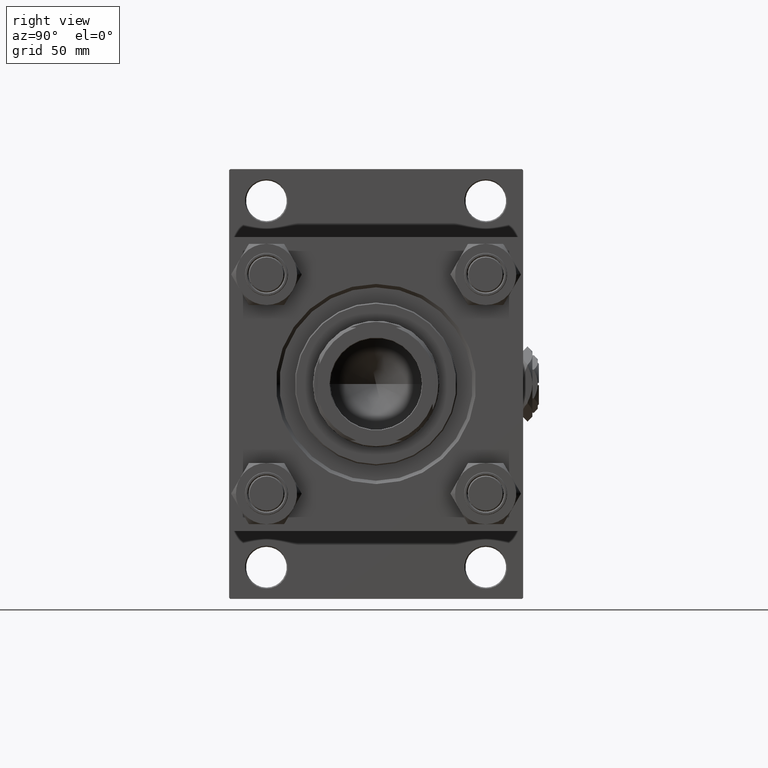
[diagram: clean part render]
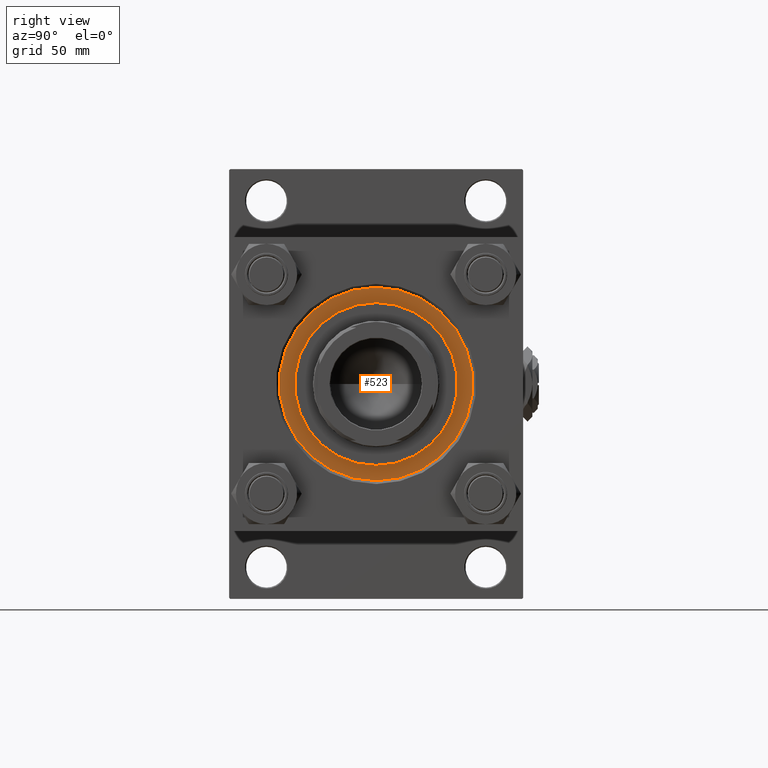
[diagram: same view with one face highlighted and labeled with its STEP entity id]
A machine part, right view. The second image highlights one B-rep face of the part: STEP entity #523.
In plain terms, the highlighted planar face has unit normal (1, 0, 0).
Its self-contained STEP definition (entity closure, byte-faithful):
#523 = ADVANCED_FACE ( 'NONE', ( #37120, #45878 ), #4943, .T. ) ;
#1317 = EDGE_LOOP ( 'NONE', ( #31355, #17736 ) ) ;
#2992 = AXIS2_PLACEMENT_3D ( 'NONE', #7835, #31473, #40515 ) ;
#3150 = ORIENTED_EDGE ( 'NONE', *, *, #32224, .T. ) ;
#4943 = PLANE ( 'NONE',  #23277 ) ;
#7703 = EDGE_CURVE ( 'NONE', #19094, #27431, #25922, .T. ) ;
#7835 = CARTESIAN_POINT ( 'NONE',  ( 0.000000000000000000, 0.000000000000000000, 28.69999999999999929 ) ) ;
#10267 = ORIENTED_EDGE ( 'NONE', *, *, #7703, .T. ) ;
#10931 = CARTESIAN_POINT ( 'NONE',  ( 0.000000000000000000, 0.000000000000000000, 28.69999999999999929 ) ) ;
#14979 = VERTEX_POINT ( 'NONE', #48690 ) ;
#16830 = EDGE_CURVE ( 'NONE', #14979, #49253, #20314, .T. ) ;
#17736 = ORIENTED_EDGE ( 'NONE', *, *, #22820, .F. ) ;
#19094 = VERTEX_POINT ( 'NONE', #42202 ) ;
#20314 = CIRCLE ( 'NONE', #48355, 36.00000000000000000 ) ;
#20816 = CARTESIAN_POINT ( 'NONE',  ( 36.00000000000000000, 4.408728476930470856E-15, 28.69999999999999929 ) ) ;
#22820 = EDGE_CURVE ( 'NONE', #49253, #14979, #42656, .T. ) ;
#23277 = AXIS2_PLACEMENT_3D ( 'NONE', #33909, #25935, #25150 ) ;
#25150 = DIRECTION ( 'NONE',  ( 1.000000000000000000, 0.000000000000000000, -0.000000000000000000 ) ) ;
#25155 = DIRECTION ( 'NONE',  ( 1.000000000000000000, 0.000000000000000000, 0.000000000000000000 ) ) ;
#25922 = CIRCLE ( 'NONE', #2992, 42.75000000000000000 ) ;
#25935 = DIRECTION ( 'NONE',  ( 0.000000000000000000, 0.000000000000000000, 1.000000000000000000 ) ) ;
#27431 = VERTEX_POINT ( 'NONE', #28934 ) ;
#28934 = CARTESIAN_POINT ( 'NONE',  ( 42.75000000000000000, 5.235365066354935472E-15, 28.69999999999999929 ) ) ;
#30536 = DIRECTION ( 'NONE',  ( 0.000000000000000000, 0.000000000000000000, 1.000000000000000000 ) ) ;
#31355 = ORIENTED_EDGE ( 'NONE', *, *, #16830, .F. ) ;
#31473 = DIRECTION ( 'NONE',  ( 0.000000000000000000, 0.000000000000000000, 1.000000000000000000 ) ) ;
#32224 = EDGE_CURVE ( 'NONE', #27431, #19094, #40466, .T. ) ;
#33746 = DIRECTION ( 'NONE',  ( 1.000000000000000000, 0.000000000000000000, 0.000000000000000000 ) ) ;
#33909 = CARTESIAN_POINT ( 'NONE',  ( 0.000000000000000000, 0.000000000000000000, 28.69999999999999929 ) ) ;
#34322 = DIRECTION ( 'NONE',  ( 0.000000000000000000, 0.000000000000000000, 1.000000000000000000 ) ) ;
#37120 = FACE_BOUND ( 'NONE', #1317, .T. ) ;
#37908 = DIRECTION ( 'NONE',  ( 0.000000000000000000, 0.000000000000000000, 1.000000000000000000 ) ) ;
#39632 = AXIS2_PLACEMENT_3D ( 'NONE', #40851, #37908, #25155 ) ;
#40466 = CIRCLE ( 'NONE', #39632, 42.75000000000000000 ) ;
#40515 = DIRECTION ( 'NONE',  ( 1.000000000000000000, 0.000000000000000000, 0.000000000000000000 ) ) ;
#40851 = CARTESIAN_POINT ( 'NONE',  ( 0.000000000000000000, 0.000000000000000000, 28.69999999999999929 ) ) ;
#40957 = AXIS2_PLACEMENT_3D ( 'NONE', #10931, #34322, #47071 ) ;
#42202 = CARTESIAN_POINT ( 'NONE',  ( -42.75000000000000000, 0.000000000000000000, 28.69999999999999929 ) ) ;
#42250 = CARTESIAN_POINT ( 'NONE',  ( 0.000000000000000000, 0.000000000000000000, 28.69999999999999929 ) ) ;
#42656 = CIRCLE ( 'NONE', #40957, 36.00000000000000000 ) ;
#45878 = FACE_OUTER_BOUND ( 'NONE', #50731, .T. ) ;
#47071 = DIRECTION ( 'NONE',  ( 1.000000000000000000, 0.000000000000000000, 0.000000000000000000 ) ) ;
#48355 = AXIS2_PLACEMENT_3D ( 'NONE', #42250, #30536, #33746 ) ;
#48690 = CARTESIAN_POINT ( 'NONE',  ( -36.00000000000000000, 0.000000000000000000, 28.69999999999999929 ) ) ;
#49253 = VERTEX_POINT ( 'NONE', #20816 ) ;
#50731 = EDGE_LOOP ( 'NONE', ( #10267, #3150 ) ) ;